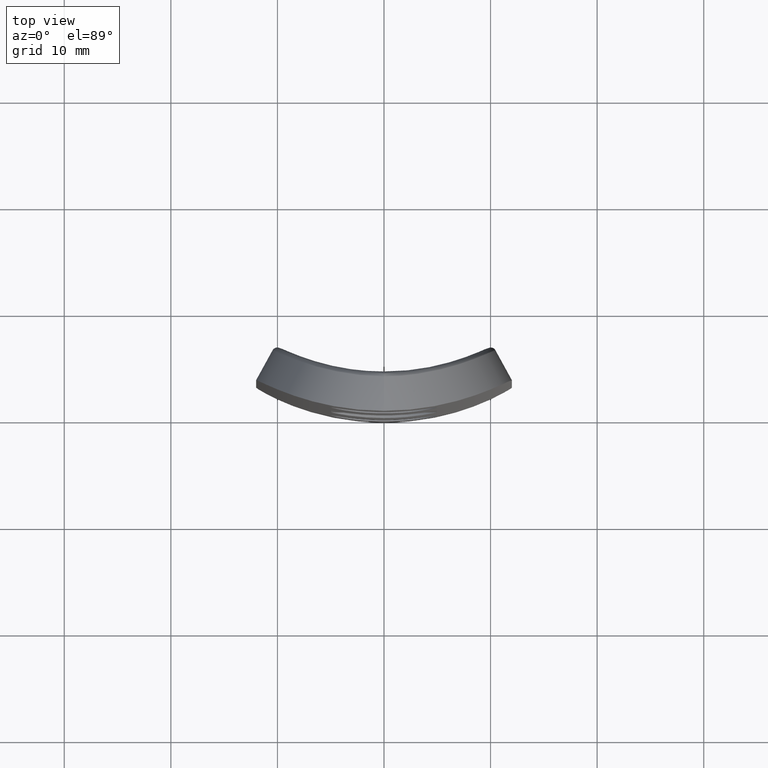
[diagram: clean part render]
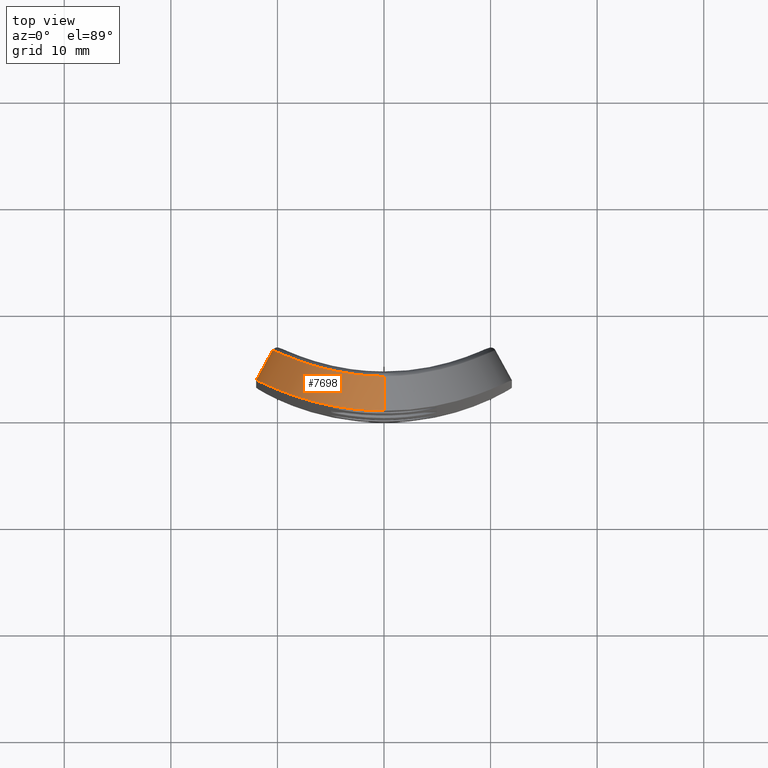
[diagram: same view with one face highlighted and labeled with its STEP entity id]
A machine part, top view. The second image highlights one B-rep face of the part: STEP entity #7698.
In plain terms, the highlighted cylindrical surface (partial cylindrical patch) has radius 12 mm, axis along (0.4819, 0.8762, -0).
Its self-contained STEP definition (entity closure, byte-faithful):
#283 = DIRECTION ( 'NONE',  ( -0.8762109800277930700, 0.4819277108433738800, 0.0000000000000000000 ) ) ;
#1006 = CARTESIAN_POINT ( 'NONE',  ( -7.465386431756504800, 1.143302312327336300, 29.68815436188814200 ) ) ;
#1159 = VERTEX_POINT ( 'NONE', #7335 ) ;
#1598 = CARTESIAN_POINT ( 'NONE',  ( -2.794747767780328300, 0.1541723985420278800, 31.73757162576538300 ) ) ;
#1848 = CARTESIAN_POINT ( 'NONE',  ( -10.14034840887877600, 5.729866555024367300, 22.91475408195938000 ) ) ;
#1940 = CARTESIAN_POINT ( 'NONE',  ( -9.960288091199421600, 5.640309669445870500, 23.62431856137338900 ) ) ;
#2139 = CARTESIAN_POINT ( 'NONE',  ( -8.362564540343113300, 1.444462998155984200, 28.93211677885593900 ) ) ;
#2681 = CARTESIAN_POINT ( 'NONE',  ( -7.131093571847403100, 4.464168087506225300, 28.60124151802543600 ) ) ;
#2995 = CARTESIAN_POINT ( 'NONE',  ( -10.21500871849437100, 5.767696369064183600, 22.55711163707681500 ) ) ;
#3402 = CARTESIAN_POINT ( 'NONE',  ( -11.64449887647196900, 2.889965252531363500, 23.19149219421942800 ) ) ;
#3462 = CARTESIAN_POINT ( 'NONE',  ( -10.86337671054186600, 2.492480404372157600, 25.45273175522527600 ) ) ;
#3772 = CARTESIAN_POINT ( 'NONE',  ( -10.45505487545768000, 5.891269701761550500, 20.00000000000000000 ) ) ;
#4008 = CARTESIAN_POINT ( 'NONE',  ( -3.185422266228745700, 0.2014935117955072600, 31.65346151089247300 ) ) ;
#4060 = CARTESIAN_POINT ( 'NONE',  ( -7.144447545478620000, 1.044514472182765500, 29.92030368926517500 ) ) ;
#4098 = CARTESIAN_POINT ( 'NONE',  ( -4.534825437327056900, 3.748821515126901500, 30.52213823842947300 ) ) ;
#4209 = CARTESIAN_POINT ( 'NONE',  ( -9.493047847731210400, 5.415295632416782500, 25.01326570578500300 ) ) ;
#4241 = CARTESIAN_POINT ( 'NONE',  ( -9.648348977379416000E-015, 0.0000000000000000000, 32.00000000000000000 ) ) ;
#4266 = CARTESIAN_POINT ( 'NONE',  ( -8.471561614151776000, 4.969723628537183300, 26.90975643252787500 ) ) ;
#4359 = EDGE_CURVE ( 'NONE', #14160, #9497, #12500, .T. ) ;
#4411 = B_SPLINE_CURVE_WITH_KNOTS ( 'NONE', 3,
 ( #13668, #11169, #11266, #5178, #7625, #14655, #11111, #4098, #5339, #8815, #14864, #7523, #2681, #5235, #5394, #4266, #13924, #11371, #4209, #12686, #1940, #1848, #2995, #7928, #6574, #15109 ),
 .UNSPECIFIED., .F., .F.,
 ( 4, 2, 2, 2, 2, 2, 2, 2, 2, 2, 2, 2, 4 ),
 ( 0.0000000000000000000, 0.001112496874376508600, 0.002224993748753017200, 0.004449987497506029300, 0.005562484371882536400, 0.006674981246259042600, 0.008899974995012062100, 0.01001247186938857000, 0.01112496874376507600, 0.01334996249251808700, 0.01446245936689459800, 0.01557495624127110800, 0.01779994999002413800 ),
 .UNSPECIFIED. ) ;
#4543 = CARTESIAN_POINT ( 'NONE',  ( -9.651496139240766300, 1.945102445586713900, 27.47737785628719100 ) ) ;
#4908 =( BOUNDED_CURVE ( )  B_SPLINE_CURVE ( 3, ( #4241, #13692, #14939, #9042 ),
 .UNSPECIFIED., .F., .T. ) 
 B_SPLINE_CURVE_WITH_KNOTS ( ( 4, 4 ),
 ( 4.712388980384689700, 4.842528913632068400 ),
 .UNSPECIFIED. ) 
 CURVE ( )  GEOMETRIC_REPRESENTATION_ITEM ( )  RATIONAL_B_SPLINE_CURVE ( ( 1.000000000000000000, 0.9985891310666824600, 0.9985891310666824600, 1.000000000000000000 ) ) 
 REPRESENTATION_ITEM ( '' )  );
#4986 = CARTESIAN_POINT ( 'NONE',  ( -8.908510052025803800, 1.646330388748682600, 28.37937364185426100 ) ) ;
#5178 = CARTESIAN_POINT ( 'NONE',  ( -1.462267733718387100, 3.297284311261309100, 31.65653743707208500 ) ) ;
#5235 = CARTESIAN_POINT ( 'NONE',  ( -7.833305283921844400, 4.719266358118381400, 27.78663773652139200 ) ) ;
#5295 = CARTESIAN_POINT ( 'NONE',  ( -0.8125589719993513400, 3.887881227897237100E-016, 32.00000000000000000 ) ) ;
#5339 = CARTESIAN_POINT ( 'NONE',  ( -4.850982341867971400, 3.819503937024066900, 30.34545285072241700 ) ) ;
#5394 = CARTESIAN_POINT ( 'NONE',  ( -8.056363116155694100, 4.804545384783355500, 27.50031777044233600 ) ) ;
#5904 = CARTESIAN_POINT ( 'NONE',  ( -12.00000000000000000, 3.082346597307949100, 20.00000000000000000 ) ) ;
#6125 = VECTOR ( 'NONE', #14979, 1000.000000000000000 ) ;
#6574 = CARTESIAN_POINT ( 'NONE',  ( -10.45505487545768400, 5.891269701761551400, 20.74369463097171000 ) ) ;
#6680 = CARTESIAN_POINT ( 'NONE',  ( -1.613102312184491600, 0.03970442660034871600, 31.93708710865749000 ) ) ;
#6830 = EDGE_CURVE ( 'NONE', #1159, #12289, #4908, .T. ) ;
#7335 = CARTESIAN_POINT ( 'NONE',  ( -9.648348977379416000E-015, 0.0000000000000000000, 32.00000000000000000 ) ) ;
#7523 = CARTESIAN_POINT ( 'NONE',  ( -6.614694112078483500, 4.293231788751545400, 29.09215257876477900 ) ) ;
#7532 = CARTESIAN_POINT ( 'NONE',  ( 10.51453176033352400, 19.11686746987950500, 20.00000000000000000 ) ) ;
#7584 = DIRECTION ( 'NONE',  ( 0.4819277108433738800, 0.8762109800277929600, -0.0000000000000000000 ) ) ;
#7625 = CARTESIAN_POINT ( 'NONE',  ( -1.823709883739447600, 3.328802529533184000, 31.56997820427041300 ) ) ;
#7694 = CARTESIAN_POINT ( 'NONE',  ( -5.931431355515059100E-015, 3.231345056262482400, 31.89852492656308800 ) ) ;
#7698 = ADVANCED_FACE ( 'NONE', ( #12069 ), #9423, .T. ) ;
#7743 = EDGE_CURVE ( 'NONE', #1159, #14160, #10994, .T. ) ;
#7928 = CARTESIAN_POINT ( 'NONE',  ( -10.39441033852605200, 5.859319790259933200, 21.47575775976511600 ) ) ;
#8392 = CARTESIAN_POINT ( 'NONE',  ( -11.42861343239433600, 2.775428072017194700, 23.97385143687691700 ) ) ;
#8502 = CARTESIAN_POINT ( 'NONE',  ( -8.074259893479329300, 1.343281069480899200, 29.19397140321250100 ) ) ;
#8815 = CARTESIAN_POINT ( 'NONE',  ( -5.467565589066910400, 3.970306275829791300, 29.95920198927893800 ) ) ;
#8878 = CARTESIAN_POINT ( 'NONE',  ( -6.156121038829931900, 0.7632757867342823100, 30.55584034722584600 ) ) ;
#8903 = ORIENTED_EDGE ( 'NONE', *, *, #13421, .T. ) ;
#9042 = CARTESIAN_POINT ( 'NONE',  ( -5.931431355515059100E-015, 3.231345056262482400, 31.89852492656308800 ) ) ;
#9170 = CARTESIAN_POINT ( 'NONE',  ( -12.00000000000000000, 3.082346597307949100, 20.00000000000000000 ) ) ;
#9239 = AXIS2_PLACEMENT_3D ( 'NONE', #7532, #7584, #283 ) ;
#9423 = CYLINDRICAL_SURFACE ( 'NONE', #9239, 11.99999999999999800 ) ;
#9497 = VERTEX_POINT ( 'NONE', #3772 ) ;
#9708 = ORIENTED_EDGE ( 'NONE', *, *, #4359, .F. ) ;
#10622 = CARTESIAN_POINT ( 'NONE',  ( -11.99999999999999600, 3.082346597307952200, 20.81329885972720500 ) ) ;
#10994 = B_SPLINE_CURVE_WITH_KNOTS ( 'NONE', 3,
 ( #12643, #5295, #6680, #1598, #4008, #12445, #13622, #14824, #8878, #4060, #1006, #8502, #2139, #4986, #11241, #4543, #12391, #14180, #3462, #8392, #3402, #11839, #10622, #5904 ),
 .UNSPECIFIED., .F., .F.,
 ( 4, 2, 2, 2, 2, 2, 2, 2, 2, 2, 2, 4 ),
 ( 1.035266063289337000E-017, 0.002406420888280993700, 0.003609631332421487300, 0.004812841776561981400, 0.007219262664842964300, 0.008422473108983455700, 0.009625683553123943700, 0.01082889399726443500, 0.01203210444140492300, 0.01443852532968591300, 0.01684494621796690400, 0.01925136710624789100 ),
 .UNSPECIFIED. ) ;
#11111 = CARTESIAN_POINT ( 'NONE',  ( -3.563487049633612600, 3.553619597859449400, 31.00564224895478200 ) ) ;
#11169 = CARTESIAN_POINT ( 'NONE',  ( -0.3694255239971167000, 3.236962632278304500, 31.85580555292284200 ) ) ;
#11241 = CARTESIAN_POINT ( 'NONE',  ( -9.166149050193594100, 1.747021551233983700, 28.08848537800125600 ) ) ;
#11266 = CARTESIAN_POINT ( 'NONE',  ( -0.7358220946504350200, 3.251452348229522100, 31.79923357073367300 ) ) ;
#11371 = CARTESIAN_POINT ( 'NONE',  ( -9.196144659064133400, 5.277887941172747500, 25.67001518979866100 ) ) ;
#11839 = CARTESIAN_POINT ( 'NONE',  ( -11.92848259060795800, 3.042569072407052200, 21.61410712426871700 ) ) ;
#12069 = FACE_OUTER_BOUND ( 'NONE', #13453, .T. ) ;
#12289 = VERTEX_POINT ( 'NONE', #7694 ) ;
#12391 = CARTESIAN_POINT ( 'NONE',  ( -9.880202087646585700, 2.042944110087798300, 27.15553979867361500 ) ) ;
#12445 = CARTESIAN_POINT ( 'NONE',  ( -3.959980470126890600, 0.3137906045222392200, 31.44697538539421100 ) ) ;
#12495 = CARTESIAN_POINT ( 'NONE',  ( -10.21686746987951700, 6.324327223410785200, 20.00000000000000000 ) ) ;
#12500 = LINE ( 'NONE', #12495, #6125 ) ;
#12643 = CARTESIAN_POINT ( 'NONE',  ( -9.648348977379416000E-015, 0.0000000000000000000, 32.00000000000000000 ) ) ;
#12686 = CARTESIAN_POINT ( 'NONE',  ( -9.854190850945034400, 5.588249747847272400, 23.97806087955931900 ) ) ;
#13215 = ORIENTED_EDGE ( 'NONE', *, *, #6830, .T. ) ;
#13373 = ORIENTED_EDGE ( 'NONE', *, *, #7743, .F. ) ;
#13421 = EDGE_CURVE ( 'NONE', #12289, #9497, #4411, .T. ) ;
#13453 = EDGE_LOOP ( 'NONE', ( #13215, #8903, #9708, #13373 ) ) ;
#13622 = CARTESIAN_POINT ( 'NONE',  ( -4.343585444218820000, 0.3788691193330895900, 31.32433790244267200 ) ) ;
#13668 = CARTESIAN_POINT ( 'NONE',  ( -5.931431355515059100E-015, 3.231345056262482400, 31.89852492656308800 ) ) ;
#13692 = CARTESIAN_POINT ( 'NONE',  ( -3.138573531913936500E-015, 1.080924397931969100, 32.00000000000000000 ) ) ;
#13924 = CARTESIAN_POINT ( 'NONE',  ( -8.663671254142755600, 5.049547193717777400, 26.60600176303314900 ) ) ;
#14160 = VERTEX_POINT ( 'NONE', #9170 ) ;
#14180 = CARTESIAN_POINT ( 'NONE',  ( -10.51395294504080300, 2.323897979086566600, 26.15610659191669600 ) ) ;
#14655 = CARTESIAN_POINT ( 'NONE',  ( -2.885545255493510400, 3.445901236858845100, 31.26614118052228300 ) ) ;
#14824 = CARTESIAN_POINT ( 'NONE',  ( -5.455945028680437400, 0.5933539838150094800, 30.90527435075046000 ) ) ;
#14864 = CARTESIAN_POINT ( 'NONE',  ( -5.764533070701305400, 4.049605539781781600, 29.75166888921780400 ) ) ;
#14939 = CARTESIAN_POINT ( 'NONE',  ( -4.539452615204635600E-015, 2.159561231885488200, 31.96612718541926100 ) ) ;
#14979 = DIRECTION ( 'NONE',  ( 0.4819277108433738800, 0.8762109800277929600, -0.0000000000000000000 ) ) ;
#15109 = CARTESIAN_POINT ( 'NONE',  ( -10.45505487545768000, 5.891269701761550500, 20.00000000000000000 ) ) ;